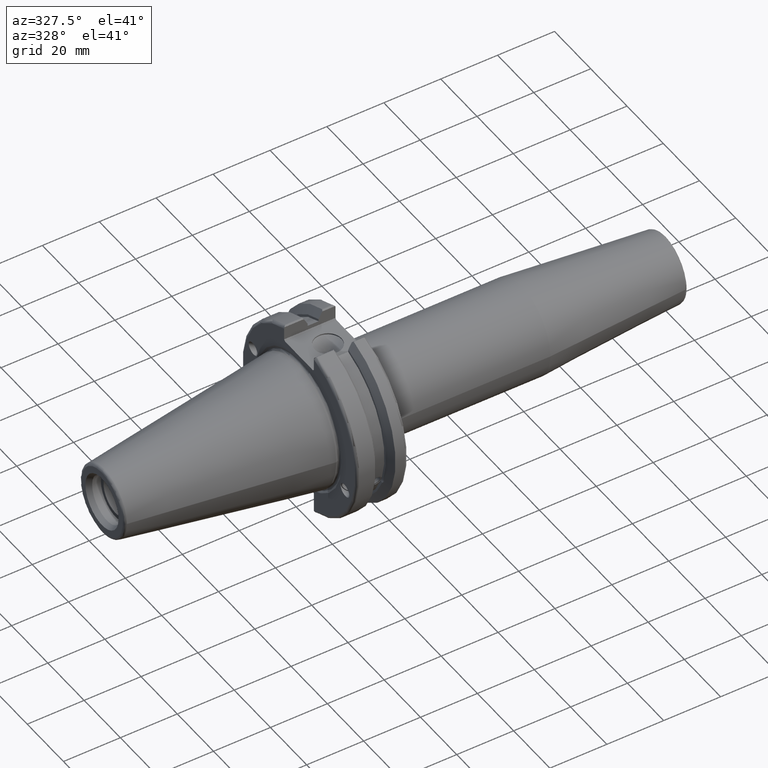
[diagram: clean part render]
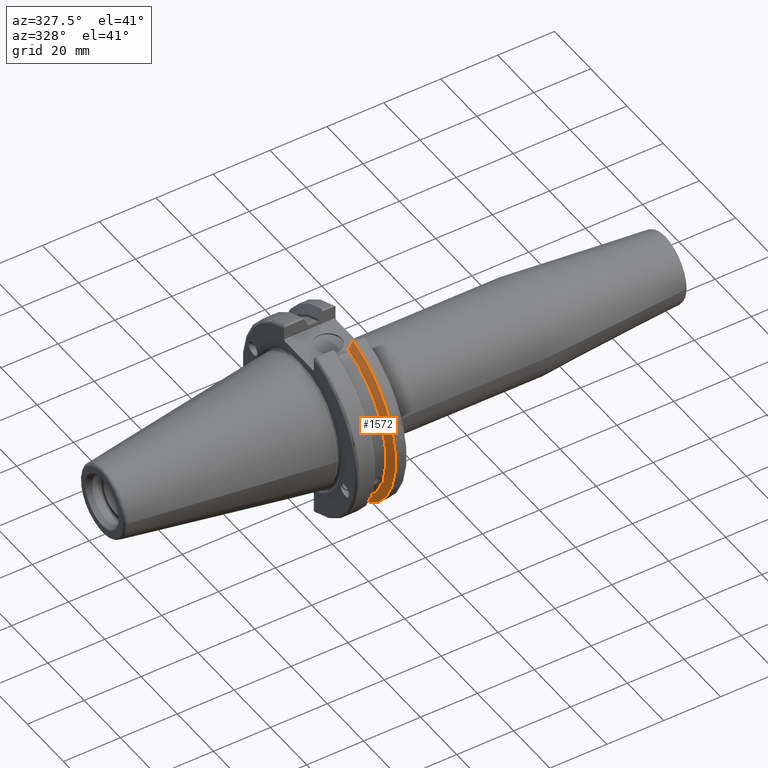
[diagram: same view with one face highlighted and labeled with its STEP entity id]
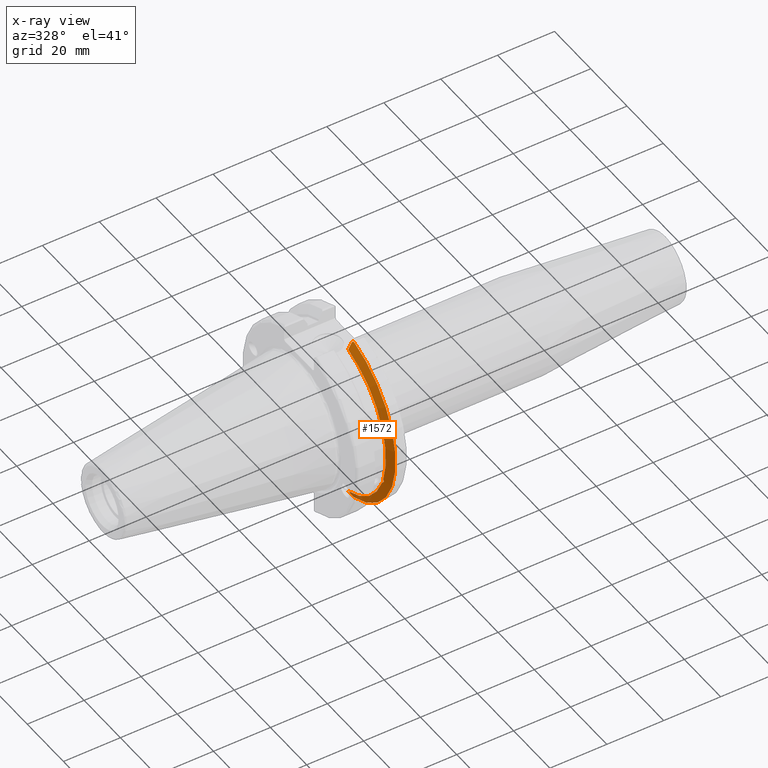
[diagram: x-ray of the same camera — body ghosted, the highlighted face saturated]
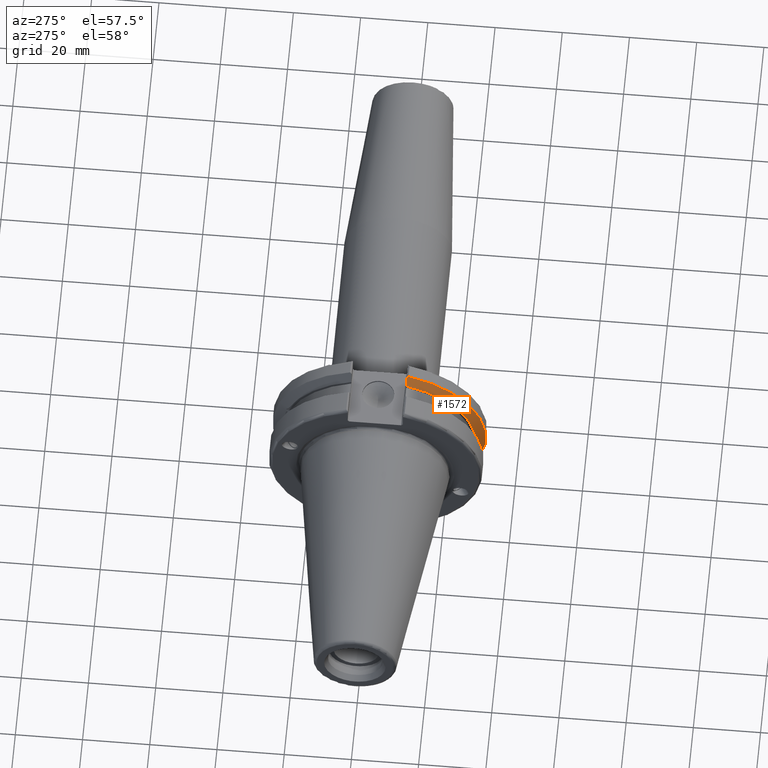
[diagram: same view with one face highlighted and labeled with its STEP entity id]
A machine part, auxiliary view. The second image highlights one B-rep face of the part: STEP entity #1572.
The next image is the same camera in x-ray: the body ghosted, the highlighted face saturated — about 3% of this face is hidden behind the body in this view.
A second angle (auxiliary view) of the same face is appended — the face is thin or edge-on in the first view.
In plain terms, the highlighted conical surface has half-angle 60 deg.
Its self-contained STEP definition (entity closure, byte-faithful):
#15=(
BOUNDED_CURVE()
B_SPLINE_CURVE(2,(#2610,#2611,#2612),.UNSPECIFIED.,.F.,.F.)
B_SPLINE_CURVE_WITH_KNOTS((3,3),(0.,0.276549142796805),.UNSPECIFIED.)
CURVE()
GEOMETRIC_REPRESENTATION_ITEM()
RATIONAL_B_SPLINE_CURVE((1.,1.00095203904186,1.00031614445102))
REPRESENTATION_ITEM('')
);
#16=(
BOUNDED_CURVE()
B_SPLINE_CURVE(2,(#2614,#2615,#2616),.UNSPECIFIED.,.F.,.F.)
B_SPLINE_CURVE_WITH_KNOTS((3,3),(0.,0.0639048713676002),.UNSPECIFIED.)
CURVE()
GEOMETRIC_REPRESENTATION_ITEM()
RATIONAL_B_SPLINE_CURVE((1.,1.0002844421828,1.00047644010568))
REPRESENTATION_ITEM('')
);
#17=(
BOUNDED_CURVE()
B_SPLINE_CURVE(2,(#2620,#2621,#2622),.UNSPECIFIED.,.F.,.F.)
B_SPLINE_CURVE_WITH_KNOTS((3,3),(0.329353533631192,0.393258405001023),
 .UNSPECIFIED.)
CURVE()
GEOMETRIC_REPRESENTATION_ITEM()
RATIONAL_B_SPLINE_CURVE((1.00047644010581,1.00028444218288,1.))
REPRESENTATION_ITEM('')
);
#18=(
BOUNDED_CURVE()
B_SPLINE_CURVE(2,(#2624,#2625,#2626),.UNSPECIFIED.,.F.,.F.)
B_SPLINE_CURVE_WITH_KNOTS((3,3),(0.0550586467390284,0.331607789535849),
 .UNSPECIFIED.)
CURVE()
GEOMETRIC_REPRESENTATION_ITEM()
RATIONAL_B_SPLINE_CURVE((1.00031614445116,1.00095203904229,1.))
REPRESENTATION_ITEM('')
);
#37=B_SPLINE_CURVE_WITH_KNOTS('',3,(#2517,#2518,#2519,#2520,#2521,#2522,
#2523,#2524),.UNSPECIFIED.,.F.,.F.,(4,2,2,4),(0.451995700189026,0.46454782854766,
0.504528771685166,0.544509714822671),.UNSPECIFIED.);
#41=B_SPLINE_CURVE_WITH_KNOTS('',3,(#2579,#2580,#2581,#2582,#2583,#2584,
#2585,#2586),.UNSPECIFIED.,.F.,.F.,(4,2,2,4),(0.544509714822671,0.584490657960176,
0.624471601097681,0.637023729456314),.UNSPECIFIED.);
#203=FACE_OUTER_BOUND('',#304,.T.);
#304=EDGE_LOOP('',(#1182,#1183,#1184,#1185,#1186,#1187,#1188,#1189,#1190));
#600=CIRCLE('',#1725,28.9593772964944);
#601=CIRCLE('',#1726,31.75);
#602=CIRCLE('',#1727,28.9593772964944);
#694=VERTEX_POINT('',#2514);
#695=VERTEX_POINT('',#2516);
#702=VERTEX_POINT('',#2577);
#708=VERTEX_POINT('',#2607);
#709=VERTEX_POINT('',#2609);
#710=VERTEX_POINT('',#2613);
#711=VERTEX_POINT('',#2617);
#712=VERTEX_POINT('',#2619);
#713=VERTEX_POINT('',#2623);
#870=EDGE_CURVE('',#695,#694,#37,.T.);
#878=EDGE_CURVE('',#694,#702,#41,.T.);
#887=EDGE_CURVE('',#702,#708,#600,.T.);
#888=EDGE_CURVE('',#708,#709,#15,.T.);
#889=EDGE_CURVE('',#710,#709,#16,.T.);
#890=EDGE_CURVE('',#711,#710,#601,.T.);
#891=EDGE_CURVE('',#712,#711,#17,.T.);
#892=EDGE_CURVE('',#712,#713,#18,.T.);
#893=EDGE_CURVE('',#713,#695,#602,.T.);
#1182=ORIENTED_EDGE('',*,*,#870,.T.);
#1183=ORIENTED_EDGE('',*,*,#878,.T.);
#1184=ORIENTED_EDGE('',*,*,#887,.T.);
#1185=ORIENTED_EDGE('',*,*,#888,.T.);
#1186=ORIENTED_EDGE('',*,*,#889,.F.);
#1187=ORIENTED_EDGE('',*,*,#890,.F.);
#1188=ORIENTED_EDGE('',*,*,#891,.F.);
#1189=ORIENTED_EDGE('',*,*,#892,.T.);
#1190=ORIENTED_EDGE('',*,*,#893,.T.);
#1536=CONICAL_SURFACE('',#1724,30.3546886482472,1.0471975511966);
#1572=ADVANCED_FACE('',(#203),#1536,.T.);
#1724=AXIS2_PLACEMENT_3D('',#2606,#2008,#2009);
#1725=AXIS2_PLACEMENT_3D('',#2608,#2010,#2011);
#1726=AXIS2_PLACEMENT_3D('',#2618,#2012,#2013);
#1727=AXIS2_PLACEMENT_3D('',#2627,#2014,#2015);
#2008=DIRECTION('center_axis',(1.,0.,0.));
#2009=DIRECTION('ref_axis',(0.,-1.,-1.22464679914735E-16));
#2010=DIRECTION('center_axis',(1.,0.,0.));
#2011=DIRECTION('ref_axis',(0.,0.,-1.));
#2012=DIRECTION('center_axis',(1.,0.,0.));
#2013=DIRECTION('ref_axis',(0.,0.,-1.));
#2014=DIRECTION('center_axis',(1.,0.,0.));
#2015=DIRECTION('ref_axis',(0.,0.,-1.));
#2514=CARTESIAN_POINT('',(13.276,-27.51401829017,-10.0142836826777));
#2516=CARTESIAN_POINT('',(13.091,-27.4956274489925,-9.09043478536249));
#2517=CARTESIAN_POINT('Ctrl Pts',(13.091,-27.4956274489925,-9.09043478536248));
#2518=CARTESIAN_POINT('Ctrl Pts',(13.1051204071996,-27.5087667900418,-9.12860597076219));
#2519=CARTESIAN_POINT('Ctrl Pts',(13.1185929817857,-27.5206055003512,-9.16696618806878));
#2520=CARTESIAN_POINT('Ctrl Pts',(13.171981441159,-27.5642934663232,-9.32791534028655));
#2521=CARTESIAN_POINT('Ctrl Pts',(13.2101197084175,-27.5867382255984,-9.46717946402648));
#2522=CARTESIAN_POINT('Ctrl Pts',(13.2623106446058,-27.5847569104122,-9.74771639360671));
#2523=CARTESIAN_POINT('Ctrl Pts',(13.276,-27.559599249844,-9.8890510252165));
#2524=CARTESIAN_POINT('Ctrl Pts',(13.276,-27.51401829017,-10.0142836826777));
#2577=CARTESIAN_POINT('',(13.091,-26.9060914640649,-10.710171591907));
#2579=CARTESIAN_POINT('Ctrl Pts',(13.276,-27.51401829017,-10.0142836826777));
#2580=CARTESIAN_POINT('Ctrl Pts',(13.276,-27.4684373304961,-10.139516340139));
#2581=CARTESIAN_POINT('Ctrl Pts',(13.2623106446058,-27.3968610665578,-10.2639559818059));
#2582=CARTESIAN_POINT('Ctrl Pts',(13.2101197084175,-27.2180531796526,-10.4801333026531));
#2583=CARTESIAN_POINT('Ctrl Pts',(13.171981441159,-27.1113422433189,-10.5723885976054));
#2584=CARTESIAN_POINT('Ctrl Pts',(13.1185929817857,-26.9744191989197,-10.6676007180673));
#2585=CARTESIAN_POINT('Ctrl Pts',(13.1051204071996,-26.9406927482839,-10.6893765730703));
#2586=CARTESIAN_POINT('Ctrl Pts',(13.091,-26.9060914640649,-10.7101715919071));
#2606=CARTESIAN_POINT('Origin',(13.8965833845378,0.,0.));
#2607=CARTESIAN_POINT('',(13.091,-8.19,-27.7771386827498));
#2608=CARTESIAN_POINT('Origin',(13.091,0.,0.));
#2609=CARTESIAN_POINT('',(14.4234146964874,-8.19,-30.1755016258903));
#2610=CARTESIAN_POINT('Ctrl Pts',(13.091,-8.19,-27.7771386827498));
#2611=CARTESIAN_POINT('Ctrl Pts',(13.7296364384735,-8.19,-28.9303689539659));
#2612=CARTESIAN_POINT('Ctrl Pts',(14.4234146964874,-8.19,-30.1755016258903));
#2613=CARTESIAN_POINT('',(14.7021667690756,-8.67204822802685,-30.5427254764662));
#2614=CARTESIAN_POINT('Ctrl Pts',(14.7021667690756,-8.67204822802686,-30.5427254764662));
#2615=CARTESIAN_POINT('Ctrl Pts',(14.5611085187837,-8.42917748262647,-30.357706789263));
#2616=CARTESIAN_POINT('Ctrl Pts',(14.4234146964874,-8.19,-30.1755016258903));
#2617=CARTESIAN_POINT('',(14.7021667690756,-8.67204822802685,30.5427254764662));
#2618=CARTESIAN_POINT('Origin',(14.7021667690756,0.,0.));
#2619=CARTESIAN_POINT('',(14.4234146964874,-8.19,30.1755016258903));
#2620=CARTESIAN_POINT('Ctrl Pts',(14.4234146964874,-8.19,30.1755016258903));
#2621=CARTESIAN_POINT('Ctrl Pts',(14.5611085187884,-8.42917748263466,30.3577067892692));
#2622=CARTESIAN_POINT('Ctrl Pts',(14.7021667690756,-8.67204822802685,30.5427254764662));
#2623=CARTESIAN_POINT('',(13.091,-8.19,27.7771386827498));
#2624=CARTESIAN_POINT('Ctrl Pts',(14.4234146964874,-8.19,30.1755016258903));
#2625=CARTESIAN_POINT('Ctrl Pts',(13.7296364384736,-8.19,28.9303689539661));
#2626=CARTESIAN_POINT('Ctrl Pts',(13.091,-8.19,27.7771386827498));
#2627=CARTESIAN_POINT('Origin',(13.091,0.,0.));